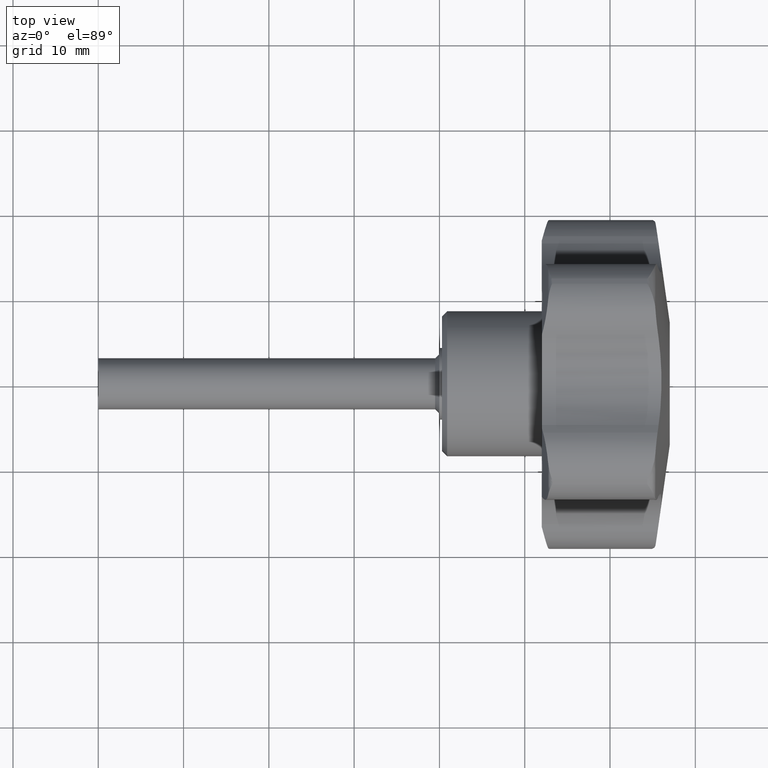
[diagram: clean part render]
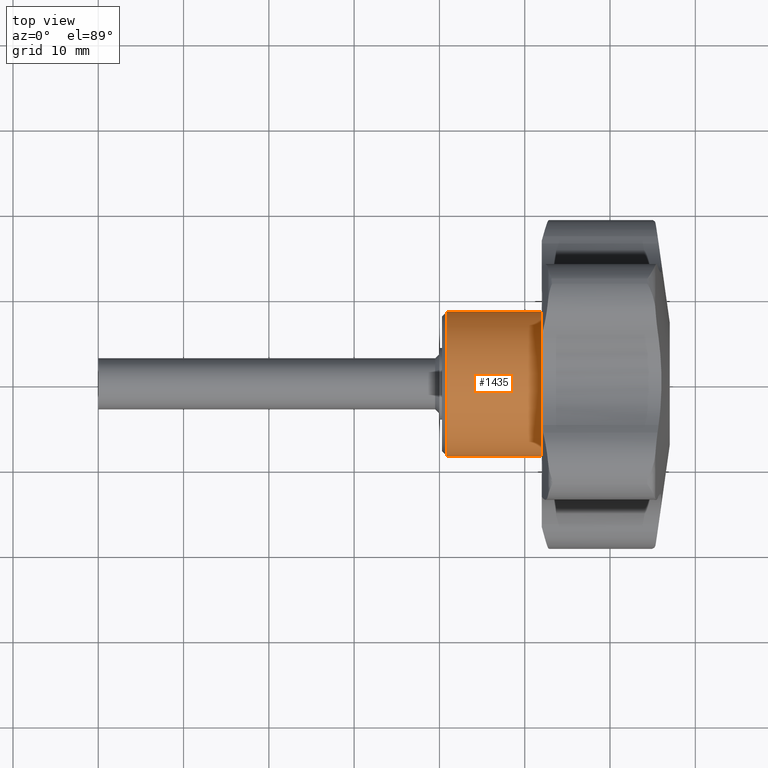
[diagram: same view with one face highlighted and labeled with its STEP entity id]
A machine part, top view. The second image highlights one B-rep face of the part: STEP entity #1435.
In plain terms, the highlighted cylindrical surface (bore or boss wall) has radius 8.5 mm, axis along (-1, 0, 0).
Its self-contained STEP definition (entity closure, byte-faithful):
#290=FACE_BOUND('',#392,.T.);
#303=FACE_OUTER_BOUND('',#391,.T.);
#391=EDGE_LOOP('',(#983));
#392=EDGE_LOOP('',(#984));
#493=CIRCLE('',#1533,8.5);
#494=CIRCLE('',#1534,8.5);
#603=VERTEX_POINT('',#2325);
#604=VERTEX_POINT('',#2327);
#758=EDGE_CURVE('',#603,#603,#493,.T.);
#759=EDGE_CURVE('',#604,#604,#494,.T.);
#983=ORIENTED_EDGE('',*,*,#758,.F.);
#984=ORIENTED_EDGE('',*,*,#759,.T.);
#1397=CYLINDRICAL_SURFACE('',#1532,8.5);
#1435=ADVANCED_FACE('',(#303,#290),#1397,.T.);
#1532=AXIS2_PLACEMENT_3D('',#2324,#1715,#1716);
#1533=AXIS2_PLACEMENT_3D('',#2326,#1717,#1718);
#1534=AXIS2_PLACEMENT_3D('',#2328,#1719,#1720);
#1715=DIRECTION('center_axis',(-1.,0.,0.));
#1716=DIRECTION('ref_axis',(0.,-1.,0.));
#1717=DIRECTION('center_axis',(1.,0.,0.));
#1718=DIRECTION('ref_axis',(0.,-1.,0.));
#1719=DIRECTION('center_axis',(1.,0.,0.));
#1720=DIRECTION('ref_axis',(0.,-1.,0.));
#2324=CARTESIAN_POINT('Origin',(6.45,3.94948592725021E-16,0.));
#2325=CARTESIAN_POINT('',(12.,8.5,1.04091540074902E-15));
#2326=CARTESIAN_POINT('Origin',(12.,7.34788079488412E-16,0.));
#2327=CARTESIAN_POINT('',(0.899999999999998,8.5,1.04091540074902E-15));
#2328=CARTESIAN_POINT('Origin',(0.899999999999999,5.51091059616305E-17,
0.));